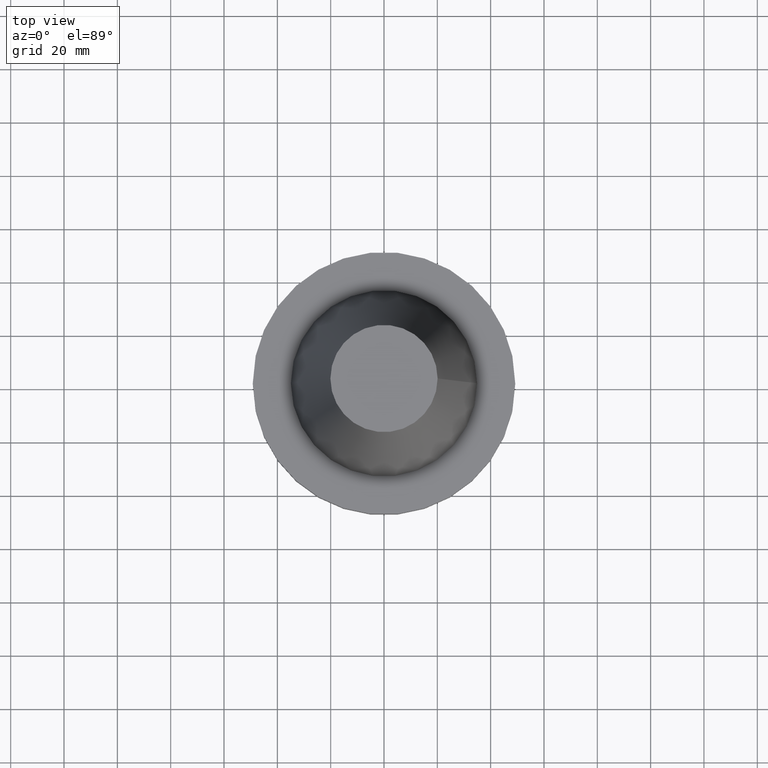
[diagram: clean part render]
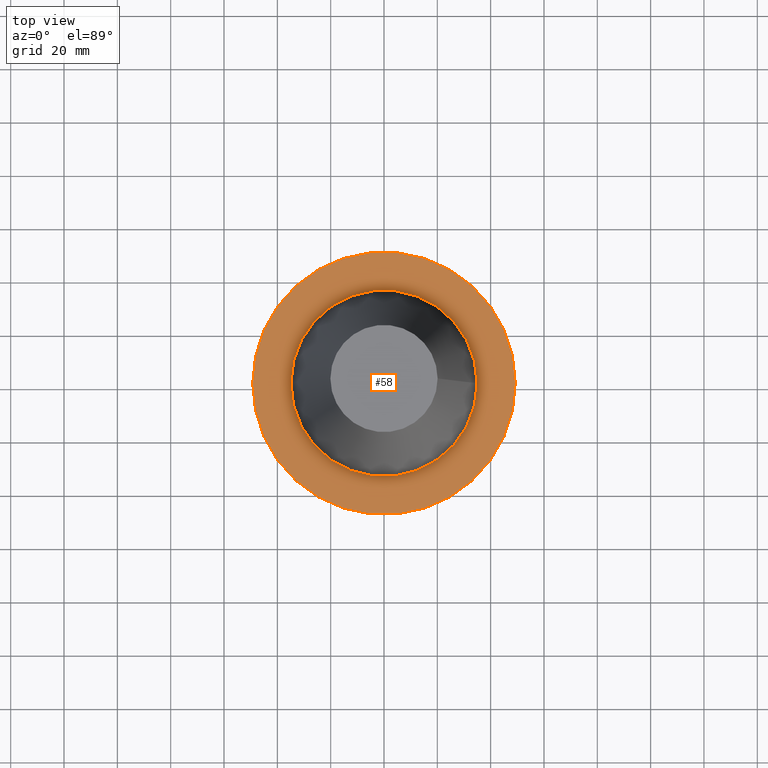
[diagram: same view with one face highlighted and labeled with its STEP entity id]
A machine part, top view. The second image highlights one B-rep face of the part: STEP entity #58.
In plain terms, the highlighted planar face has unit normal (0, 0, -1).
Its self-contained STEP definition (entity closure, byte-faithful):
#15 = CARTESIAN_POINT ( 'NONE',  ( 0.000000000000000000, 0.000000000000000000, -1.499999999999987566 ) ) ;
#26 = AXIS2_PLACEMENT_3D ( 'NONE', #15, #271, #115 ) ;
#29 = PLANE ( 'NONE',  #71 ) ;
#30 = VERTEX_POINT ( 'NONE', #280 ) ;
#58 = ADVANCED_FACE ( 'NONE', ( #141, #384 ), #29, .F. ) ;
#71 = AXIS2_PLACEMENT_3D ( 'NONE', #167, #285, #94 ) ;
#94 = DIRECTION ( 'NONE',  ( -1.000000000000000000, 0.000000000000000000, -0.000000000000000000 ) ) ;
#111 = EDGE_LOOP ( 'NONE', ( #185 ) ) ;
#112 = DIRECTION ( 'NONE',  ( -0.000000000000000000, -0.000000000000000000, 1.000000000000000000 ) ) ;
#115 = DIRECTION ( 'NONE',  ( 1.000000000000000000, 0.000000000000000000, 0.000000000000000000 ) ) ;
#141 = FACE_BOUND ( 'NONE', #111, .T. ) ;
#164 = EDGE_LOOP ( 'NONE', ( #268 ) ) ;
#167 = CARTESIAN_POINT ( 'NONE',  ( 0.000000000000000000, 49.21499999999999631, -1.499999999999992895 ) ) ;
#171 = DIRECTION ( 'NONE',  ( 1.000000000000000000, 0.000000000000000000, 0.000000000000000000 ) ) ;
#178 = CARTESIAN_POINT ( 'NONE',  ( 0.000000000000000000, 0.000000000000000000, -1.499999999999987566 ) ) ;
#185 = ORIENTED_EDGE ( 'NONE', *, *, #394, .F. ) ;
#190 = VERTEX_POINT ( 'NONE', #369 ) ;
#214 = EDGE_CURVE ( 'NONE', #30, #30, #380, .T. ) ;
#268 = ORIENTED_EDGE ( 'NONE', *, *, #214, .T. ) ;
#271 = DIRECTION ( 'NONE',  ( -0.000000000000000000, -0.000000000000000000, 1.000000000000000000 ) ) ;
#280 = CARTESIAN_POINT ( 'NONE',  ( 49.21499999999999631, 0.000000000000000000, -1.499999999999987566 ) ) ;
#285 = DIRECTION ( 'NONE',  ( 0.000000000000000000, 0.000000000000000000, -1.000000000000000000 ) ) ;
#302 = CIRCLE ( 'NONE', #26, 34.92499999999999005 ) ;
#319 = AXIS2_PLACEMENT_3D ( 'NONE', #178, #112, #171 ) ;
#369 = CARTESIAN_POINT ( 'NONE',  ( 34.92499999999999005, 0.000000000000000000, -1.499999999999987566 ) ) ;
#380 = CIRCLE ( 'NONE', #319, 49.21499999999999631 ) ;
#384 = FACE_OUTER_BOUND ( 'NONE', #164, .T. ) ;
#394 = EDGE_CURVE ( 'NONE', #190, #190, #302, .T. ) ;